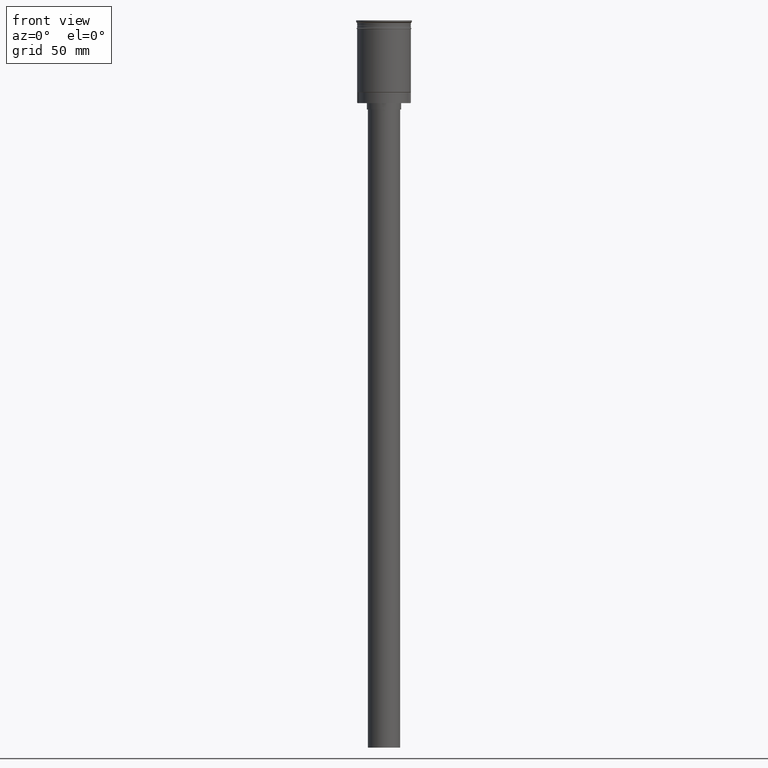
[diagram: clean part render]
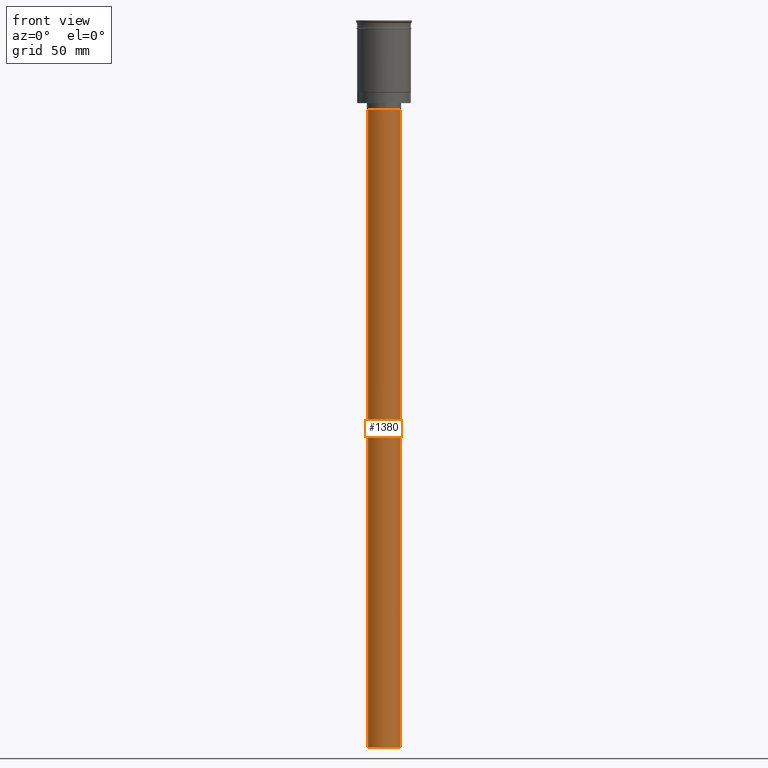
[diagram: same view with one face highlighted and labeled with its STEP entity id]
A machine part, front view. The second image highlights one B-rep face of the part: STEP entity #1380.
In plain terms, the highlighted cylindrical surface (edge-blend (fillet) strip) has radius 7.5 mm, axis along (-0, -0, 1).
Its self-contained STEP definition (entity closure, byte-faithful):
#14 = CIRCLE ( 'NONE', #1127, 7.500000000000000000 ) ;
#16 = VECTOR ( 'NONE', #88, 1000.000000000000000 ) ;
#33 = VERTEX_POINT ( 'NONE', #1271 ) ;
#74 = DIRECTION ( 'NONE',  ( -1.000000000000000000, 0.000000000000000000, 0.000000000000000000 ) ) ;
#88 = DIRECTION ( 'NONE',  ( -0.000000000000000000, -0.000000000000000000, 1.000000000000000000 ) ) ;
#132 = EDGE_LOOP ( 'NONE', ( #204, #1573, #1423, #896 ) ) ;
#191 = CARTESIAN_POINT ( 'NONE',  ( 0.000000000000000000, 0.000000000000000000, -41.50000000000000000 ) ) ;
#204 = ORIENTED_EDGE ( 'NONE', *, *, #1053, .F. ) ;
#213 = CIRCLE ( 'NONE', #297, 7.500000000000000000 ) ;
#253 = VERTEX_POINT ( 'NONE', #494 ) ;
#288 = DIRECTION ( 'NONE',  ( 1.000000000000000000, 0.000000000000000000, 0.000000000000000000 ) ) ;
#297 = AXIS2_PLACEMENT_3D ( 'NONE', #191, #1187, #74 ) ;
#348 = LINE ( 'NONE', #643, #781 ) ;
#494 = CARTESIAN_POINT ( 'NONE',  ( 7.500000000000000000, 0.000000000000000000, -41.50000000000000000 ) ) ;
#579 = EDGE_CURVE ( 'NONE', #33, #253, #348, .T. ) ;
#643 = CARTESIAN_POINT ( 'NONE',  ( 7.500000000000000000, 0.000000000000000000, -338.4999999999999432 ) ) ;
#674 = EDGE_CURVE ( 'NONE', #253, #1046, #213, .T. ) ;
#768 = EDGE_CURVE ( 'NONE', #33, #1514, #14, .T. ) ;
#781 = VECTOR ( 'NONE', #1378, 1000.000000000000000 ) ;
#848 = CARTESIAN_POINT ( 'NONE',  ( -7.500000000000000000, 9.184850993605147944E-16, -41.50000000000000000 ) ) ;
#869 = AXIS2_PLACEMENT_3D ( 'NONE', #1425, #1167, #288 ) ;
#896 = ORIENTED_EDGE ( 'NONE', *, *, #674, .T. ) ;
#946 = CARTESIAN_POINT ( 'NONE',  ( 0.000000000000000000, 0.000000000000000000, -338.4999999999999432 ) ) ;
#1046 = VERTEX_POINT ( 'NONE', #848 ) ;
#1053 = EDGE_CURVE ( 'NONE', #1514, #1046, #1198, .T. ) ;
#1127 = AXIS2_PLACEMENT_3D ( 'NONE', #946, #1481, #1453 ) ;
#1167 = DIRECTION ( 'NONE',  ( -0.000000000000000000, -0.000000000000000000, 1.000000000000000000 ) ) ;
#1172 = FACE_OUTER_BOUND ( 'NONE', #132, .T. ) ;
#1187 = DIRECTION ( 'NONE',  ( 0.000000000000000000, 0.000000000000000000, -1.000000000000000000 ) ) ;
#1198 = LINE ( 'NONE', #1326, #16 ) ;
#1271 = CARTESIAN_POINT ( 'NONE',  ( 7.500000000000000000, 0.000000000000000000, -338.4999999999999432 ) ) ;
#1326 = CARTESIAN_POINT ( 'NONE',  ( -7.500000000000000000, 9.184850993605147944E-16, -338.4999999999999432 ) ) ;
#1369 = CARTESIAN_POINT ( 'NONE',  ( -7.500000000000000000, 9.184850993605147944E-16, -338.4999999999999432 ) ) ;
#1378 = DIRECTION ( 'NONE',  ( -0.000000000000000000, -0.000000000000000000, 1.000000000000000000 ) ) ;
#1380 = ADVANCED_FACE ( 'NONE', ( #1172 ), #1546, .T. ) ;
#1423 = ORIENTED_EDGE ( 'NONE', *, *, #579, .T. ) ;
#1425 = CARTESIAN_POINT ( 'NONE',  ( 0.000000000000000000, 0.000000000000000000, -338.4999999999999432 ) ) ;
#1453 = DIRECTION ( 'NONE',  ( -1.000000000000000000, 0.000000000000000000, 0.000000000000000000 ) ) ;
#1481 = DIRECTION ( 'NONE',  ( 0.000000000000000000, 0.000000000000000000, -1.000000000000000000 ) ) ;
#1514 = VERTEX_POINT ( 'NONE', #1369 ) ;
#1546 = CYLINDRICAL_SURFACE ( 'NONE', #869, 7.500000000000000000 ) ;
#1573 = ORIENTED_EDGE ( 'NONE', *, *, #768, .F. ) ;